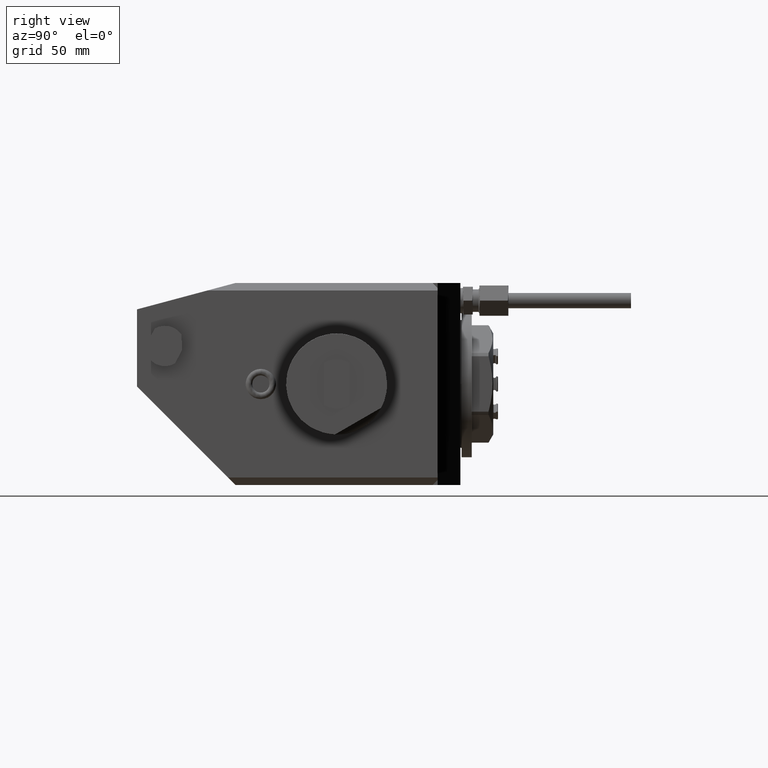
[diagram: clean part render]
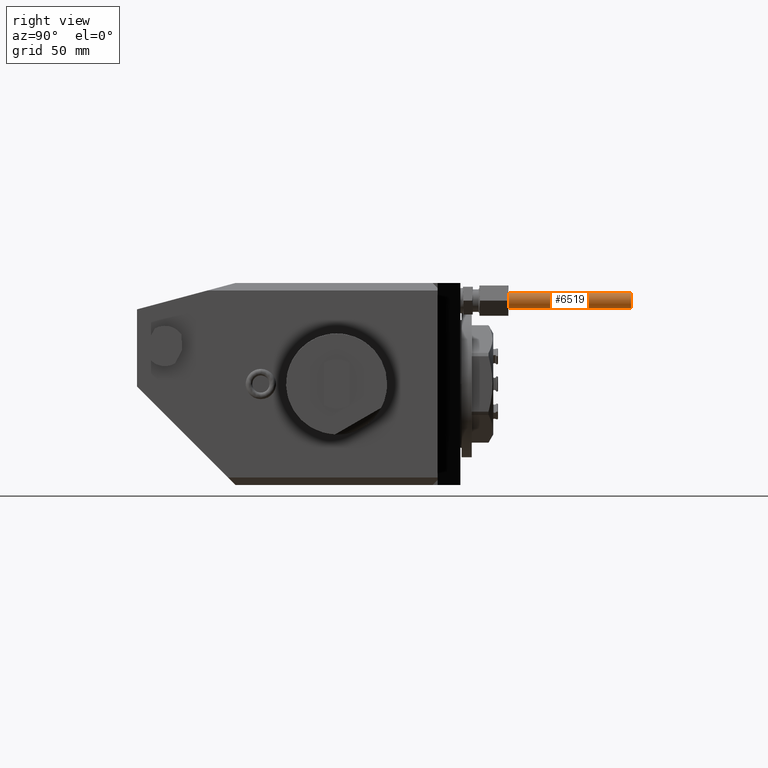
[diagram: same view with one face highlighted and labeled with its STEP entity id]
A machine part, right view. The second image highlights one B-rep face of the part: STEP entity #6519.
In plain terms, the highlighted cylindrical surface (bore or boss wall) has radius 3 mm, axis along (0, -1, 0).
Its self-contained STEP definition (entity closure, byte-faithful):
#2059=ORIENTED_EDGE('',*,*,#3756,.T.);
#2060=ORIENTED_EDGE('',*,*,#3771,.F.);
#3756=EDGE_CURVE('',#4657,#4657,#5185,.T.);
#3771=EDGE_CURVE('',#4666,#4666,#5188,.T.);
#4657=VERTEX_POINT('',#10133);
#4666=VERTEX_POINT('',#10191);
#5185=CIRCLE('',#6970,3.);
#5188=CIRCLE('',#6983,3.);
#5490=EDGE_LOOP('',(#2059));
#5491=EDGE_LOOP('',(#2060));
#5956=FACE_BOUND('',#5490,.T.);
#5957=FACE_BOUND('',#5491,.T.);
#6318=CYLINDRICAL_SURFACE('',#6982,3.);
#6519=ADVANCED_FACE('',(#5956,#5957),#6318,.T.);
#6970=AXIS2_PLACEMENT_3D('',#10132,#7879,#7880);
#6982=AXIS2_PLACEMENT_3D('',#10189,#7909,#7910);
#6983=AXIS2_PLACEMENT_3D('',#10190,#7911,#7912);
#7879=DIRECTION('',(-2.49262030336056E-16,1.,-2.05731406761622E-16));
#7880=DIRECTION('',(5.06539254985228E-16,-2.05731406761622E-16,-1.));
#7909=DIRECTION('',(2.49262030336056E-16,-1.,8.32707713793844E-17));
#7910=DIRECTION('',(-5.06539254985228E-16,8.32707713793844E-17,1.));
#7911=DIRECTION('',(-2.49262030336056E-16,1.,-8.32707713793844E-17));
#7912=DIRECTION('',(-5.06539254985228E-16,8.32707713793844E-17,1.));
#10132=CARTESIAN_POINT('',(-74.,68.,33.));
#10133=CARTESIAN_POINT('',(-74.,68.,30.));
#10189=CARTESIAN_POINT('',(-74.0000000000001,116.5,33.));
#10190=CARTESIAN_POINT('',(-74.0000000000001,116.5,33.));
#10191=CARTESIAN_POINT('',(-74.0000000000001,116.5,36.));